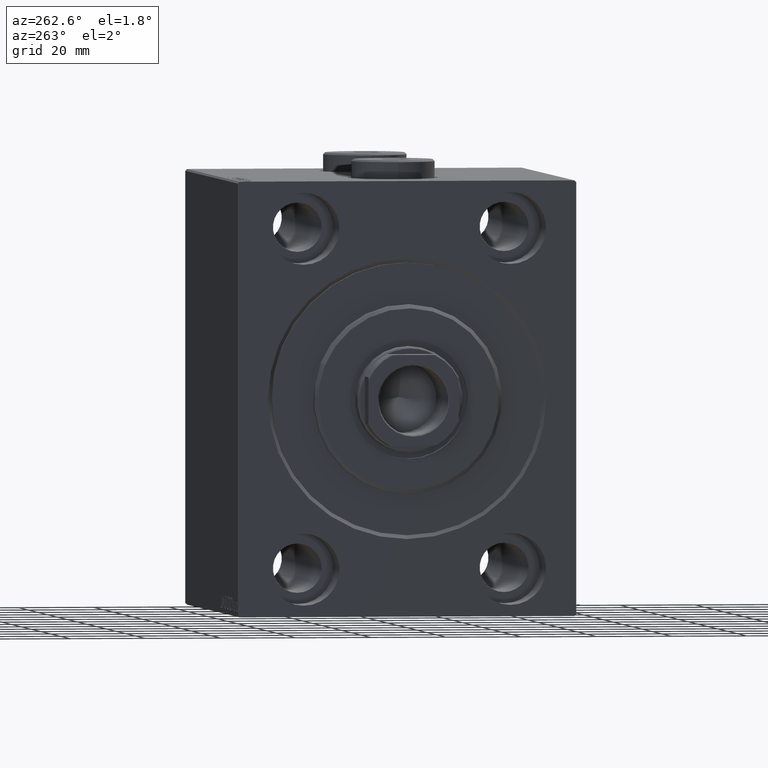
[diagram: clean part render]
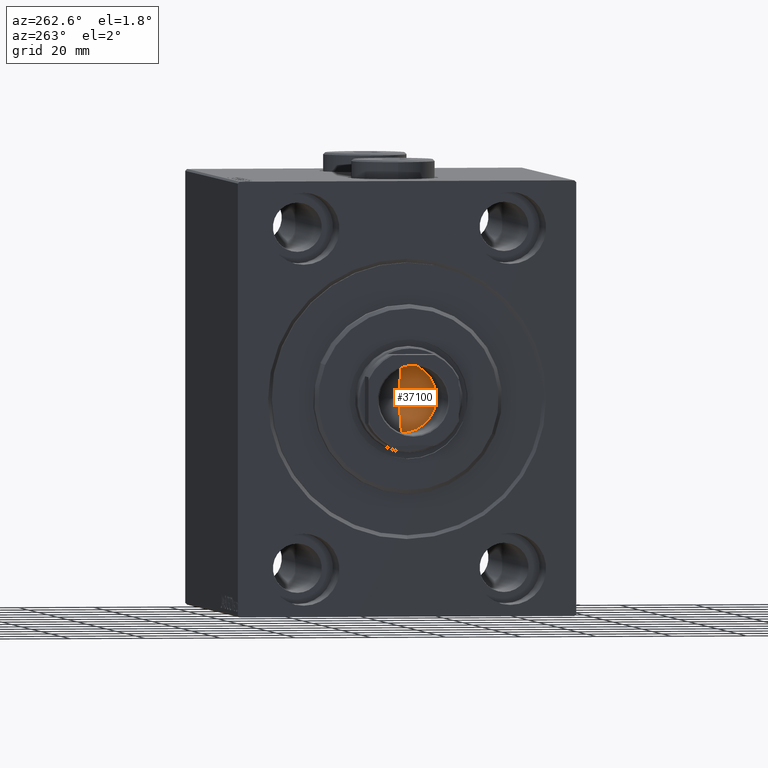
[diagram: same view with one face highlighted and labeled with its STEP entity id]
A machine part, auxiliary view. The second image highlights one B-rep face of the part: STEP entity #37100.
In plain terms, the highlighted conical surface has half-angle 59 deg.
Its self-contained STEP definition (entity closure, byte-faithful):
#2720 = DIRECTION ( 'NONE',  ( 1.000000000000000000, 0.000000000000000000, 0.000000000000000000 ) ) ;
#3236 = EDGE_CURVE ( 'NONE', #25234, #27249, #16958, .T. ) ;
#6327 = ORIENTED_EDGE ( 'NONE', *, *, #30527, .T. ) ;
#7363 = VECTOR ( 'NONE', #35600, 1000.000000000000000 ) ;
#9556 = CARTESIAN_POINT ( 'NONE',  ( -6.793016015247754405E-15, 0.000000000000000000, 73.44203927399506426 ) ) ;
#10884 = ORIENTED_EDGE ( 'NONE', *, *, #3236, .T. ) ;
#11888 = EDGE_CURVE ( 'NONE', #39105, #27249, #22695, .T. ) ;
#16958 = CIRCLE ( 'NONE', #23524, 9.249999999999994671 ) ;
#19083 = CARTESIAN_POINT ( 'NONE',  ( 9.249999999999994671, 0.000000000000000000, 79.00000000000001421 ) ) ;
#20122 = FACE_OUTER_BOUND ( 'NONE', #24099, .T. ) ;
#22000 = ORIENTED_EDGE ( 'NONE', *, *, #11888, .F. ) ;
#22342 = CARTESIAN_POINT ( 'NONE',  ( -9.249999999999994671, 1.132798289211300909E-15, 79.00000000000001421 ) ) ;
#22695 = LINE ( 'NONE', #33479, #28170 ) ;
#23524 = AXIS2_PLACEMENT_3D ( 'NONE', #41982, #27536, #31889 ) ;
#23775 = CARTESIAN_POINT ( 'NONE',  ( 0.000000000000000000, 0.000000000000000000, 79.00000000000001421 ) ) ;
#24099 = EDGE_LOOP ( 'NONE', ( #22000, #6327, #10884 ) ) ;
#25234 = VERTEX_POINT ( 'NONE', #22342 ) ;
#27249 = VERTEX_POINT ( 'NONE', #19083 ) ;
#27536 = DIRECTION ( 'NONE',  ( -0.000000000000000000, -0.000000000000000000, 1.000000000000000000 ) ) ;
#28170 = VECTOR ( 'NONE', #39679, 1000.000000000000000 ) ;
#30527 = EDGE_CURVE ( 'NONE', #39105, #25234, #42246, .T. ) ;
#30653 = DIRECTION ( 'NONE',  ( -0.000000000000000000, -0.000000000000000000, 1.000000000000000000 ) ) ;
#31889 = DIRECTION ( 'NONE',  ( 1.000000000000000000, 0.000000000000000000, 0.000000000000000000 ) ) ;
#33110 = AXIS2_PLACEMENT_3D ( 'NONE', #23775, #30653, #2720 ) ;
#33479 = CARTESIAN_POINT ( 'NONE',  ( 9.249999999999994671, 0.000000000000000000, 79.00000000000001421 ) ) ;
#35332 = CONICAL_SURFACE ( 'NONE', #33110, 9.249999999999994671, 1.029744258676652535 ) ;
#35600 = DIRECTION ( 'NONE',  ( -0.8571673007021113344, 1.049727191138617463E-16, 0.5150380749100558209 ) ) ;
#37100 = ADVANCED_FACE ( 'NONE', ( #20122 ), #35332, .F. ) ;
#39105 = VERTEX_POINT ( 'NONE', #9556 ) ;
#39679 = DIRECTION ( 'NONE',  ( 0.8571673007021113344, 0.000000000000000000, 0.5150380749100558209 ) ) ;
#41783 = CARTESIAN_POINT ( 'NONE',  ( -9.249999999999994671, 1.132798289211300909E-15, 79.00000000000001421 ) ) ;
#41982 = CARTESIAN_POINT ( 'NONE',  ( 0.000000000000000000, 0.000000000000000000, 79.00000000000001421 ) ) ;
#42246 = LINE ( 'NONE', #41783, #7363 ) ;